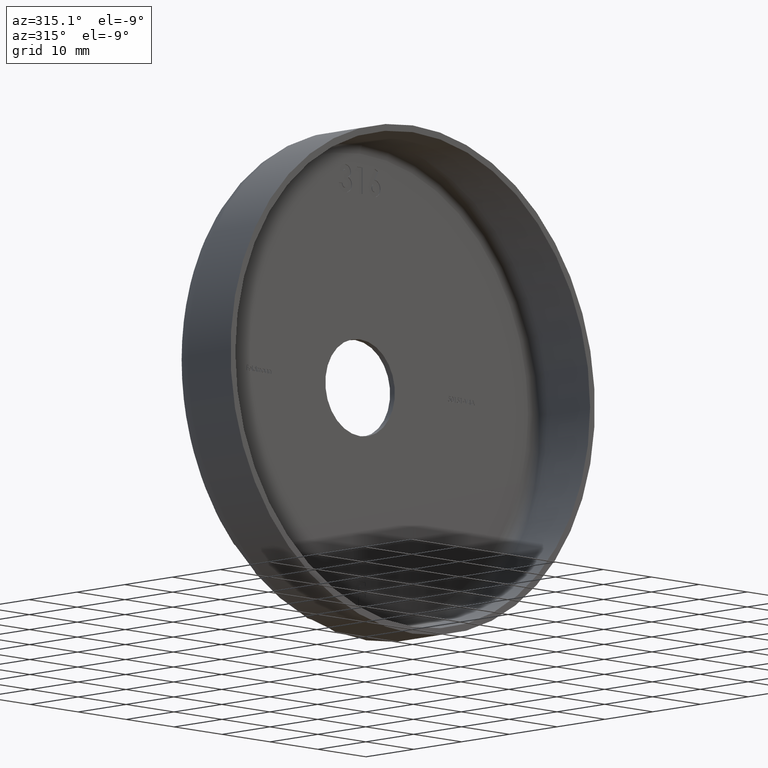
[diagram: clean part render]
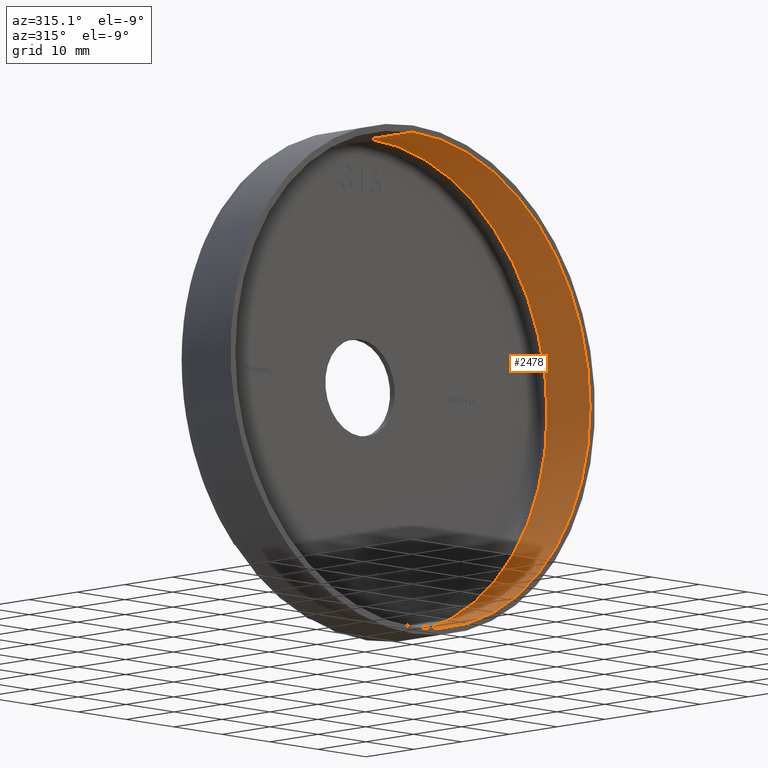
[diagram: same view with one face highlighted and labeled with its STEP entity id]
A machine part, auxiliary view. The second image highlights one B-rep face of the part: STEP entity #2478.
In plain terms, the highlighted cylindrical surface (partial cylindrical patch) has radius 37 mm, axis along (-0, -1, -0).
Its self-contained STEP definition (entity closure, byte-faithful):
#361 = CYLINDRICAL_SURFACE ( 'NONE', #7387, 37.00000000000000711 ) ;
#577 = EDGE_CURVE ( 'NONE', #6753, #8883, #6570, .T. ) ;
#764 = DIRECTION ( 'NONE',  ( -0.000000000000000000, -1.000000000000000000, -0.000000000000000000 ) ) ;
#829 = CARTESIAN_POINT ( 'NONE',  ( 0.000000000000000000, -1.224646799147353207E-16, -37.00000000000000711 ) ) ;
#1452 = CIRCLE ( 'NONE', #5672, 37.00000000000000711 ) ;
#1592 = CARTESIAN_POINT ( 'NONE',  ( 0.000000000000000000, 9.000000000000001776, -37.00000000000000711 ) ) ;
#1870 = DIRECTION ( 'NONE',  ( -0.000000000000000000, -1.000000000000000000, -0.000000000000000000 ) ) ;
#2478 = ADVANCED_FACE ( 'NONE', ( #10986 ), #361, .F. ) ;
#3471 = AXIS2_PLACEMENT_3D ( 'NONE', #10422, #10470, #6409 ) ;
#4072 = CARTESIAN_POINT ( 'NONE',  ( 4.531193156845207581E-15, -1.224646799147353207E-16, 37.00000000000000711 ) ) ;
#4919 = CARTESIAN_POINT ( 'NONE',  ( 4.531193156845207581E-15, 0.000000000000000000, 37.00000000000000711 ) ) ;
#4996 = DIRECTION ( 'NONE',  ( 0.000000000000000000, 0.000000000000000000, -1.000000000000000000 ) ) ;
#5081 = CARTESIAN_POINT ( 'NONE',  ( 0.000000000000000000, 0.000000000000000000, 0.000000000000000000 ) ) ;
#5206 = DIRECTION ( 'NONE',  ( -0.000000000000000000, -1.000000000000000000, -0.000000000000000000 ) ) ;
#5271 = VECTOR ( 'NONE', #5206, 1000.000000000000000 ) ;
#5339 = CIRCLE ( 'NONE', #3471, 37.00000000000000711 ) ;
#5672 = AXIS2_PLACEMENT_3D ( 'NONE', #11222, #764, #12265 ) ;
#5771 = ORIENTED_EDGE ( 'NONE', *, *, #6420, .F. ) ;
#5983 = EDGE_CURVE ( 'NONE', #6753, #10431, #1452, .T. ) ;
#6409 = DIRECTION ( 'NONE',  ( 0.000000000000000000, 0.000000000000000000, -1.000000000000000000 ) ) ;
#6420 = EDGE_CURVE ( 'NONE', #10431, #10272, #9769, .T. ) ;
#6570 = LINE ( 'NONE', #9266, #5271 ) ;
#6753 = VERTEX_POINT ( 'NONE', #1592 ) ;
#6768 = ORIENTED_EDGE ( 'NONE', *, *, #5983, .F. ) ;
#7243 = DIRECTION ( 'NONE',  ( -0.000000000000000000, -1.000000000000000000, -0.000000000000000000 ) ) ;
#7387 = AXIS2_PLACEMENT_3D ( 'NONE', #5081, #7243, #4996 ) ;
#8085 = EDGE_CURVE ( 'NONE', #8883, #10272, #5339, .T. ) ;
#8883 = VERTEX_POINT ( 'NONE', #829 ) ;
#8906 = CARTESIAN_POINT ( 'NONE',  ( 4.531193156845207581E-15, 9.000000000000001776, 37.00000000000000711 ) ) ;
#9266 = CARTESIAN_POINT ( 'NONE',  ( 0.000000000000000000, 0.000000000000000000, -37.00000000000000711 ) ) ;
#9442 = EDGE_LOOP ( 'NONE', ( #5771, #6768, #11430, #13346 ) ) ;
#9769 = LINE ( 'NONE', #4919, #12213 ) ;
#10272 = VERTEX_POINT ( 'NONE', #4072 ) ;
#10422 = CARTESIAN_POINT ( 'NONE',  ( 0.000000000000000000, -1.224646799147353207E-16, 0.000000000000000000 ) ) ;
#10431 = VERTEX_POINT ( 'NONE', #8906 ) ;
#10470 = DIRECTION ( 'NONE',  ( -0.000000000000000000, -1.000000000000000000, -0.000000000000000000 ) ) ;
#10986 = FACE_OUTER_BOUND ( 'NONE', #9442, .T. ) ;
#11222 = CARTESIAN_POINT ( 'NONE',  ( 0.000000000000000000, 9.000000000000001776, 0.000000000000000000 ) ) ;
#11430 = ORIENTED_EDGE ( 'NONE', *, *, #577, .T. ) ;
#12213 = VECTOR ( 'NONE', #1870, 1000.000000000000000 ) ;
#12265 = DIRECTION ( 'NONE',  ( 0.000000000000000000, 0.000000000000000000, -1.000000000000000000 ) ) ;
#13346 = ORIENTED_EDGE ( 'NONE', *, *, #8085, .T. ) ;